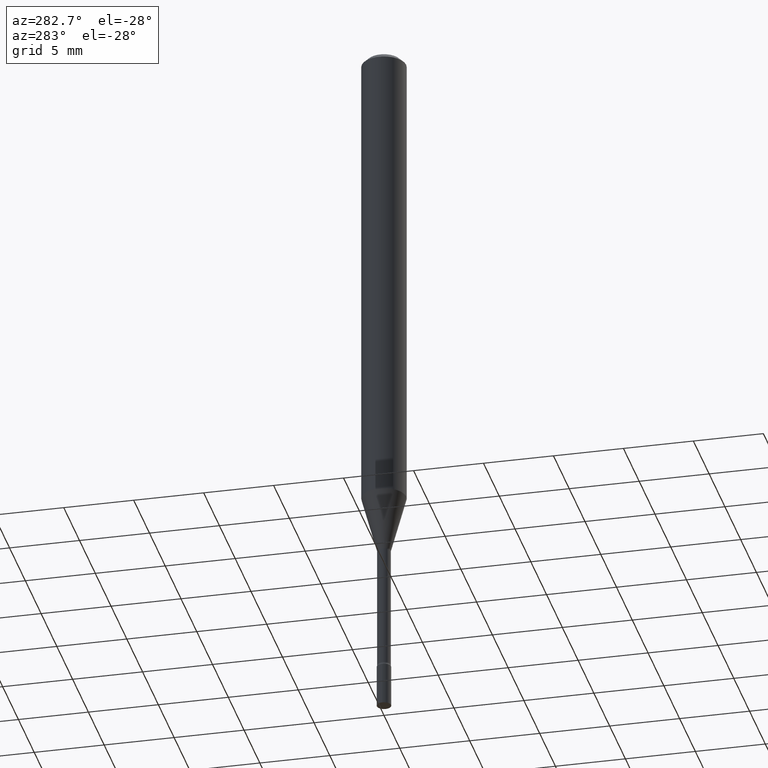
[diagram: clean part render]
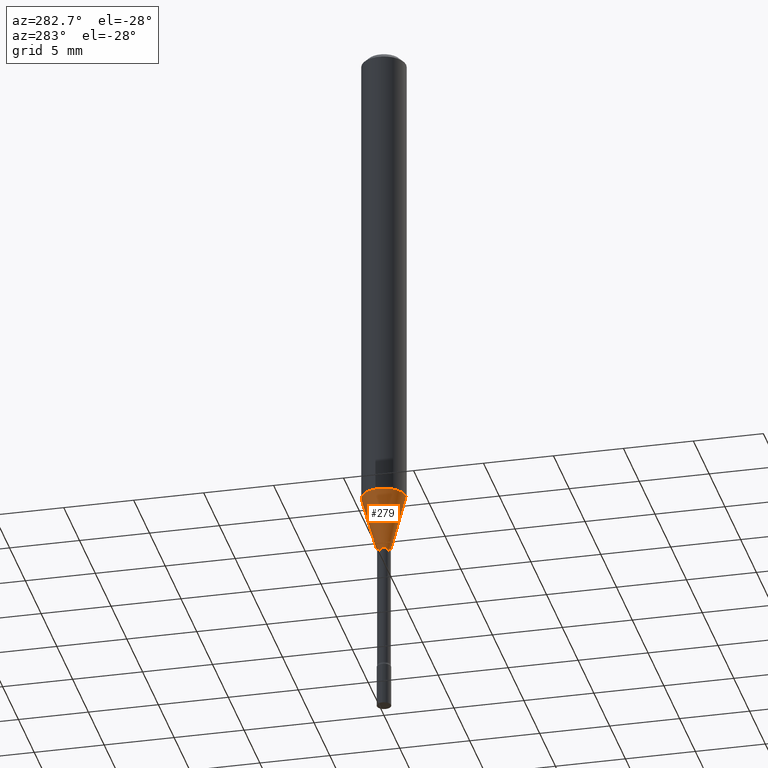
[diagram: same view with one face highlighted and labeled with its STEP entity id]
A machine part, auxiliary view. The second image highlights one B-rep face of the part: STEP entity #279.
In plain terms, the highlighted conical surface has half-angle 15 deg.
Its self-contained STEP definition (entity closure, byte-faithful):
#4 = CARTESIAN_POINT ( 'NONE',  ( -1.348487785899112650E-16, -0.01931111260566928736, -1.518092501787273063 ) ) ;
#26 = VECTOR ( 'NONE', #489, 39.37007874015748143 ) ;
#29 = ORIENTED_EDGE ( 'NONE', *, *, #63, .T. ) ;
#51 = DIRECTION ( 'NONE',  ( -2.445495531220379276E-29, 3.491443067071583478E-15, 1.000000000000000000 ) ) ;
#63 = EDGE_CURVE ( 'NONE', #244, #386, #90, .T. ) ;
#81 = DIRECTION ( 'NONE',  ( 1.839019923739597160E-15, 0.2588190451025245142, 0.9659258262890673130 ) ) ;
#82 = AXIS2_PLACEMENT_3D ( 'NONE', #491, #51, #366 ) ;
#90 = LINE ( 'NONE', #4, #26 ) ;
#98 = ORIENTED_EDGE ( 'NONE', *, *, #223, .F. ) ;
#105 = AXIS2_PLACEMENT_3D ( 'NONE', #505, #348, #135 ) ;
#123 = CARTESIAN_POINT ( 'NONE',  ( 1.372137078140355306E-16, 0.01931111260565868473, -1.518092501787273063 ) ) ;
#124 = CARTESIAN_POINT ( 'NONE',  ( -4.364351673553585373E-16, -0.06250000000000476008, -1.356909379709239971 ) ) ;
#135 = DIRECTION ( 'NONE',  ( -6.982962677686265922E-15, -1.000000000000000000, 0.000000000000000000 ) ) ;
#167 = CARTESIAN_POINT ( 'NONE',  ( -1.348487785899112650E-16, -0.01931111260566928736, -1.518092501787273063 ) ) ;
#223 = EDGE_CURVE ( 'NONE', #404, #401, #324, .T. ) ;
#229 = ORIENTED_EDGE ( 'NONE', *, *, #248, .F. ) ;
#240 = EDGE_CURVE ( 'NONE', #404, #244, #427, .T. ) ;
#243 = ORIENTED_EDGE ( 'NONE', *, *, #240, .T. ) ;
#244 = VERTEX_POINT ( 'NONE', #167 ) ;
#248 = EDGE_CURVE ( 'NONE', #401, #386, #497, .T. ) ;
#249 = VECTOR ( 'NONE', #81, 39.37007874015748143 ) ;
#274 = EDGE_LOOP ( 'NONE', ( #98, #243, #29, #229 ) ) ;
#279 = ADVANCED_FACE ( 'NONE', ( #385 ), #342, .T. ) ;
#291 = DIRECTION ( 'NONE',  ( -6.982962677686265922E-15, -1.000000000000000000, 4.370956789862821150E-15 ) ) ;
#324 = LINE ( 'NONE', #123, #249 ) ;
#329 = CARTESIAN_POINT ( 'NONE',  ( 3.318315824349964165E-29, -4.737571846430229129E-15, -1.356909379709240193 ) ) ;
#330 = CARTESIAN_POINT ( 'NONE',  ( 4.440892098500955511E-16, 0.06249999999999524686, -1.356909379709240415 ) ) ;
#342 = CONICAL_SURFACE ( 'NONE', #105, 0.01931111260566398605, 0.2617993877991497964 ) ;
#348 = DIRECTION ( 'NONE',  ( -2.445495531220379276E-29, 3.491443067071583478E-15, 1.000000000000000000 ) ) ;
#366 = DIRECTION ( 'NONE',  ( -6.982962677686265922E-15, -1.000000000000000000, 0.000000000000000000 ) ) ;
#380 = AXIS2_PLACEMENT_3D ( 'NONE', #329, #496, #291 ) ;
#385 = FACE_OUTER_BOUND ( 'NONE', #274, .T. ) ;
#386 = VERTEX_POINT ( 'NONE', #124 ) ;
#388 = CARTESIAN_POINT ( 'NONE',  ( 2.906514588320657751E-16, 0.01931111260565868473, -1.518092501787273063 ) ) ;
#401 = VERTEX_POINT ( 'NONE', #330 ) ;
#404 = VERTEX_POINT ( 'NONE', #388 ) ;
#427 = CIRCLE ( 'NONE', #82, 0.01931111260566398605 ) ;
#489 = DIRECTION ( 'NONE',  ( -1.807323732225326984E-15, -0.2588190451025177419, 0.9659258262890690894 ) ) ;
#491 = CARTESIAN_POINT ( 'NONE',  ( 3.712488429099941897E-29, -5.300333540538529346E-15, -1.518092501787273063 ) ) ;
#496 = DIRECTION ( 'NONE',  ( -2.445495531220379276E-29, 3.491443067071583478E-15, 1.000000000000000000 ) ) ;
#497 = CIRCLE ( 'NONE', #380, 0.06250000000000000000 ) ;
#505 = CARTESIAN_POINT ( 'NONE',  ( 3.712488429099941897E-29, -5.300333540538529346E-15, -1.518092501787273063 ) ) ;